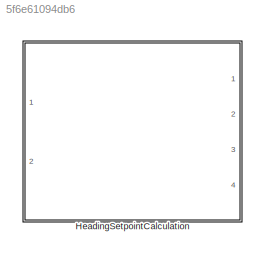
MODEL slx_5f6e61094db6
KIND library
CONFIG AbsTol = auto
CONFIG EnableMultiTasking = off
CONFIG FixedStep = auto
CONFIG MaxStep = auto
CONFIG MinStep = auto
CONFIG RelTol = 1e-3
CONFIG SampleTimeConstraint = Unconstrained
CONFIG Solver = VariableStepAuto
CONFIG SolverName = VariableStepAuto
CONFIG StartTime = 0.0
CONFIG StopTime = 10.0
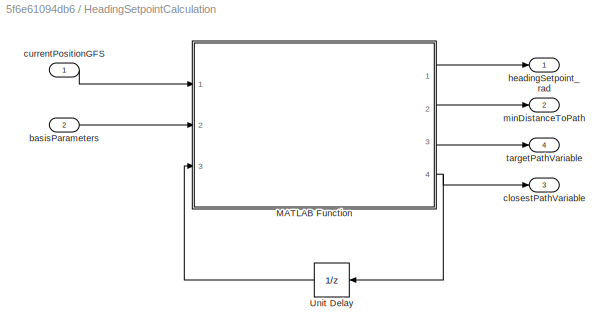
BLOCK [SubSystem] HeadingSetpointCalculation
  Ports = [2, 4]
  RequestExecContextInheritance = off
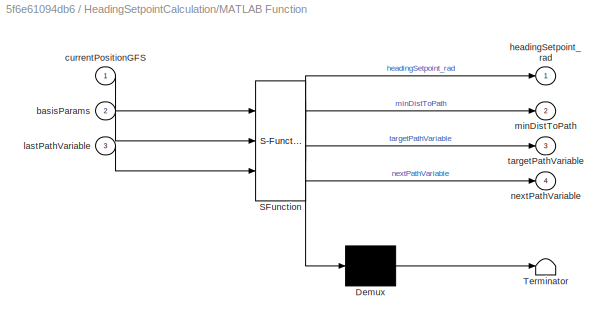
BLOCK [SubSystem] HeadingSetpointCalculation/MATLAB Function
  ErrorFcn = Stateflow.Translate.translate
  PermitHierarchicalResolution = ExplicitOnly
  Ports = [3, 4]
  RequestExecContextInheritance = off
  SFBlockType = MATLAB Function
  TreatAsAtomicUnit = on
BLOCK [Demux] HeadingSetpointCalculation/MATLAB Function/ Demux 
  Outputs = 1
  Ports = [1, 1]
BLOCK [S-Function] HeadingSetpointCalculation/MATLAB Function/ SFunction 
  EnableBusSupport = off
  FunctionName = sf_sfun
  Parameters = leadLength,meanElev,searchDistance,tol
  PortCounts = [3 5]
  Ports = [3, 5]
  SFcnIsStateOwnerBlock = off
  SFunctionDeploymentMode = off
  Tag = Stateflow S-Function headingSetpointCaclulation 2
BLOCK [Terminator] HeadingSetpointCalculation/MATLAB Function/ Terminator 
BLOCK [Inport] HeadingSetpointCalculation/MATLAB Function/basisParams
  IconDisplay = Port number
  Port = 2
BLOCK [Inport] HeadingSetpointCalculation/MATLAB Function/currentPositionGFS
  IconDisplay = Port number
BLOCK [Outport] HeadingSetpointCalculation/MATLAB Function/headingSetpoint_rad
  IconDisplay = Port number
BLOCK [Inport] HeadingSetpointCalculation/MATLAB Function/lastPathVariable
  IconDisplay = Port number
  Port = 3
BLOCK [Outport] HeadingSetpointCalculation/MATLAB Function/minDistToPath
  IconDisplay = Port number
  Port = 2
BLOCK [Outport] HeadingSetpointCalculation/MATLAB Function/nextPathVariable
  IconDisplay = Port number
  Port = 4
BLOCK [Outport] HeadingSetpointCalculation/MATLAB Function/targetPathVariable
  IconDisplay = Port number
  Port = 3
BLOCK [UnitDelay] HeadingSetpointCalculation/Unit Delay
  InitialCondition = initialPathVariable
  InputProcessing = Elements as channels (sample based)
  SampleTime = -1
BLOCK [Inport] HeadingSetpointCalculation/basisParameters
  IconDisplay = Port number
  Port = 2
BLOCK [Outport] HeadingSetpointCalculation/closestPathVariable
  IconDisplay = Port number
  Port = 3
BLOCK [Inport] HeadingSetpointCalculation/currentPositionGFS
  IconDisplay = Port number
BLOCK [Outport] HeadingSetpointCalculation/headingSetpoint_rad
  IconDisplay = Port number
BLOCK [Outport] HeadingSetpointCalculation/minDistanceToPath
  IconDisplay = Port number
  Port = 2
BLOCK [Outport] HeadingSetpointCalculation/targetPathVariable
  IconDisplay = Port number
  Port = 4
LINE HeadingSetpointCalculation/MATLAB Function:1 -> HeadingSetpointCalculation/headingSetpoint_rad:1
LINE HeadingSetpointCalculation/MATLAB Function:2 -> HeadingSetpointCalculation/minDistanceToPath:1
LINE HeadingSetpointCalculation/MATLAB Function:3 -> HeadingSetpointCalculation/targetPathVariable:1
NET HeadingSetpointCalculation/MATLAB Function:4 -> HeadingSetpointCalculation/Unit Delay:1, HeadingSetpointCalculation/closestPathVariable:1
LINE HeadingSetpointCalculation/Unit Delay:1 -> HeadingSetpointCalculation/MATLAB Function:3
LINE HeadingSetpointCalculation/basisParameters:1 -> HeadingSetpointCalculation/MATLAB Function:2
LINE HeadingSetpointCalculation/currentPositionGFS:1 -> HeadingSetpointCalculation/MATLAB Function:1
note: NET lines group one-source signal fan-out (src -> all destinations, sorted); 1:1 wires keep LINE
CHART HeadingSetpointCalculation/MATLAB Function states=1 transitions=1
  STATE_LABEL 'eML_blk_kernel()'
  STATE_LABEL 'SCRIPT:\nfunction [headingSetpoint_rad,minDistToPath,targetPathVariable,nextPathVariable] = ...\n    getHeadingSetpoint(currentPositionGFS,...\n    basisParams,lastPathVariable, searchDistance, tol, meanElev, leadLength)\n\nmeanElev = meanElev*pi/180;\n\n[nextPathVariable,minDistToPath] = ...\n    pathProjection(currentPositionGFS,basisParams,meanElev,...\n    lastPathVariable,searchDistance,tol);\n\nnextPat...<+2783ch>'
